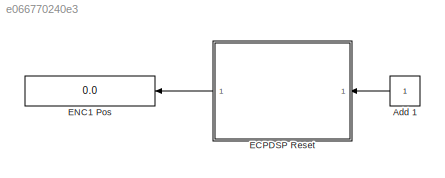
MODEL slx_e066770240e3
KIND model
BLOCK [Constant] Add 1
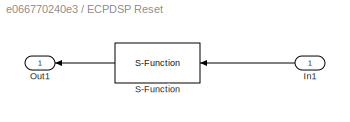
BLOCK [SubSystem] ECPDSP Reset
  FunctionWithSeparateData = off
  MaskHideContents = off
  MinAlgLoopOccurrences = off
  Opaque = off
  Ports = [1, 1]
  PropExecContextOutsideSubsystem = off
  RTWSystemCode = Auto
  RequestExecContextInheritance = off
BLOCK [Inport] ECPDSP Reset/In1
  IconDisplay = Port number
BLOCK [Outport] ECPDSP Reset/Out1
  IconDisplay = Port number
BLOCK [S-Function] ECPDSP Reset/S-Function
  EnableBusSupport = off
  FunctionName = ECPDSPReset
  Parameters = BaseAddr,STime,TimeOutPer,HWAccess
  Ports = [1, 1]
BLOCK [Display] ENC1 Pos
  Decimation = 1
  Format = long
  Lockdown = off
  Ports = [1]
LINE Add 1:1 -> ECPDSP Reset:1
LINE ECPDSP Reset/In1:1 -> ECPDSP Reset/S-Function:1
LINE ECPDSP Reset/S-Function:1 -> ECPDSP Reset/Out1:1
LINE ECPDSP Reset:1 -> ENC1 Pos:1
